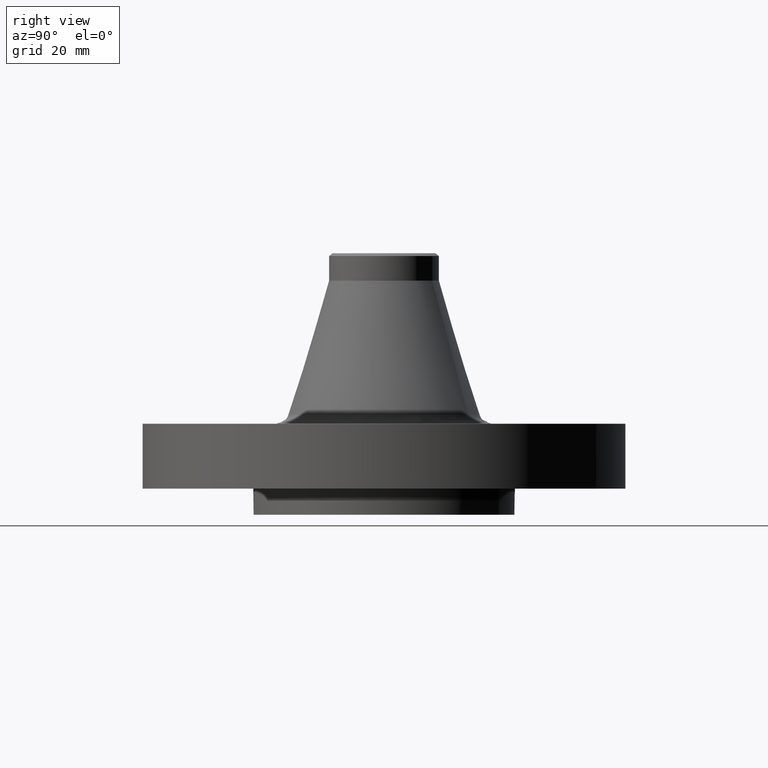
[diagram: clean part render]
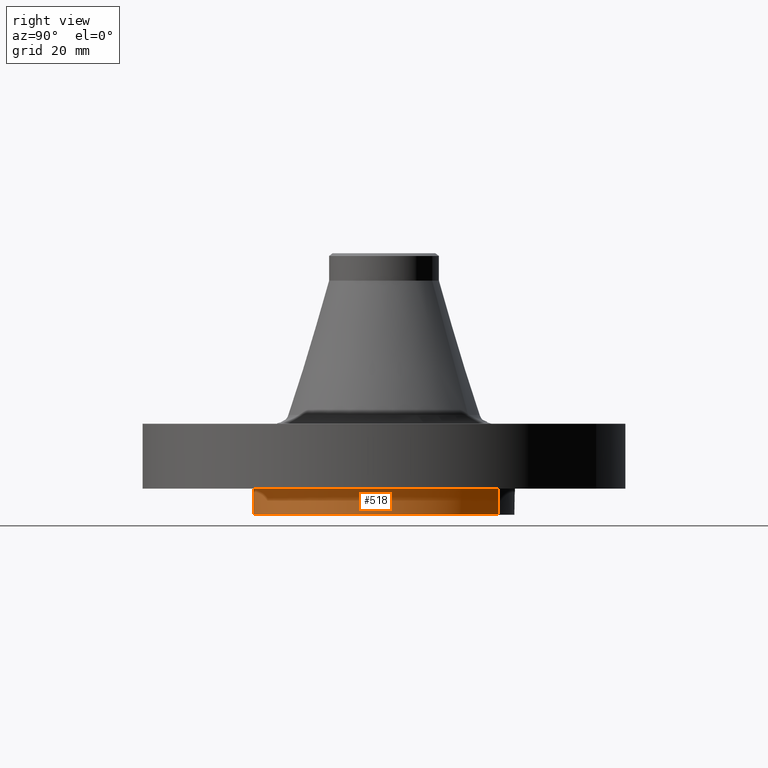
[diagram: same view with one face highlighted and labeled with its STEP entity id]
A machine part, right view. The second image highlights one B-rep face of the part: STEP entity #518.
In plain terms, the highlighted cylindrical surface (partial cylindrical patch) has radius 31.75 mm, axis along (0, 0, -1).
Its self-contained STEP definition (entity closure, byte-faithful):
#435=AXIS2_PLACEMENT_3D('Cylinder Axis2P3D',#432,#433,#434) ;
#488=AXIS2_PLACEMENT_3D('Circle Axis2P3D',#486,#487,$) ;
#493=AXIS2_PLACEMENT_3D('Circle Axis2P3D',#491,#492,$) ;
#500=AXIS2_PLACEMENT_3D('Circle Axis2P3D',#498,#499,$) ;
#507=AXIS2_PLACEMENT_3D('Circle Axis2P3D',#505,#506,$) ;
#432=CARTESIAN_POINT('Axis2P3D Location',(0.,0.,1.)) ;
#441=CARTESIAN_POINT('Vertex',(-0.599281923258,-1.09697820237,-0.250000000001)) ;
#443=CARTESIAN_POINT('Vertex',(0.599281923258,1.09697820237,-0.250000000001)) ;
#446=CARTESIAN_POINT('Line Origine',(-0.599281923258,-1.09697820237,-0.125)) ;
#450=CARTESIAN_POINT('Vertex',(-0.599281923258,-1.09697820237,1.39870617276E-016)) ;
#469=CARTESIAN_POINT('Vertex',(0.599281923258,1.09697820237,1.39870617276E-016)) ;
#472=CARTESIAN_POINT('Line Origine',(0.599281923258,1.09697820237,-0.125)) ;
#486=CARTESIAN_POINT('Axis2P3D Location',(0.,0.,-0.250000000001)) ;
#491=CARTESIAN_POINT('Axis2P3D Location',(0.,0.,1.39870617276E-016)) ;
#495=CARTESIAN_POINT('Vertex',(1.25000000001,-1.39870617276E-016,0.)) ;
#498=CARTESIAN_POINT('Axis2P3D Location',(0.,0.,1.39870617276E-016)) ;
#502=CARTESIAN_POINT('Vertex',(2.02112938519E-016,-1.25000000001,0.)) ;
#505=CARTESIAN_POINT('Axis2P3D Location',(0.,0.,1.39870617276E-016)) ;
#433=DIRECTION('Axis2P3D Direction',(0.,0.,-0.0393700787402)) ;
#434=DIRECTION('Axis2P3D XDirection',(0.0188750212049,0.0345504945626,0.)) ;
#447=DIRECTION('Vector Direction',(0.,0.,-0.0393700787402)) ;
#473=DIRECTION('Vector Direction',(0.,0.,-0.0393700787402)) ;
#487=DIRECTION('Axis2P3D Direction',(0.,0.,-0.0393700787402)) ;
#492=DIRECTION('Axis2P3D Direction',(0.,0.,-0.0393700787402)) ;
#499=DIRECTION('Axis2P3D Direction',(0.,0.,-0.0393700787402)) ;
#506=DIRECTION('Axis2P3D Direction',(0.,0.,-0.0393700787402)) ;
#448=VECTOR('Line Direction',#447,0.0393700787402) ;
#474=VECTOR('Line Direction',#473,0.0393700787402) ;
#511=ORIENTED_EDGE('',*,*,#490,.F.) ;
#512=ORIENTED_EDGE('',*,*,#476,.T.) ;
#513=ORIENTED_EDGE('',*,*,#497,.T.) ;
#514=ORIENTED_EDGE('',*,*,#504,.T.) ;
#515=ORIENTED_EDGE('',*,*,#509,.T.) ;
#516=ORIENTED_EDGE('',*,*,#452,.F.) ;
#518=ADVANCED_FACE('PartBody',(#517),#436,.T.) ;
#489=CIRCLE('generated circle',#488,1.25000000001) ;
#494=CIRCLE('generated circle',#493,1.25000000001) ;
#501=CIRCLE('generated circle',#500,1.25000000001) ;
#508=CIRCLE('generated circle',#507,1.25000000001) ;
#436=CYLINDRICAL_SURFACE('generated cylinder',#435,1.25000000001) ;
#452=EDGE_CURVE('',#442,#451,#449,.F.) ;
#476=EDGE_CURVE('',#444,#470,#475,.F.) ;
#490=EDGE_CURVE('',#444,#442,#489,.T.) ;
#497=EDGE_CURVE('',#470,#496,#494,.T.) ;
#504=EDGE_CURVE('',#496,#503,#501,.T.) ;
#509=EDGE_CURVE('',#503,#451,#508,.T.) ;
#510=EDGE_LOOP('',(#511,#512,#513,#514,#515,#516)) ;
#517=FACE_OUTER_BOUND('',#510,.T.) ;
#449=LINE('Line',#446,#448) ;
#475=LINE('Line',#472,#474) ;
#442=VERTEX_POINT('',#441) ;
#444=VERTEX_POINT('',#443) ;
#451=VERTEX_POINT('',#450) ;
#470=VERTEX_POINT('',#469) ;
#496=VERTEX_POINT('',#495) ;
#503=VERTEX_POINT('',#502) ;